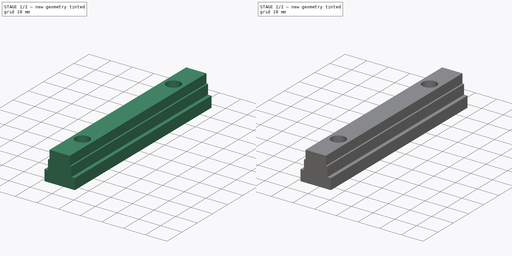
[diagram: build sequence overview — one tinted view per stage of 2, left to right]
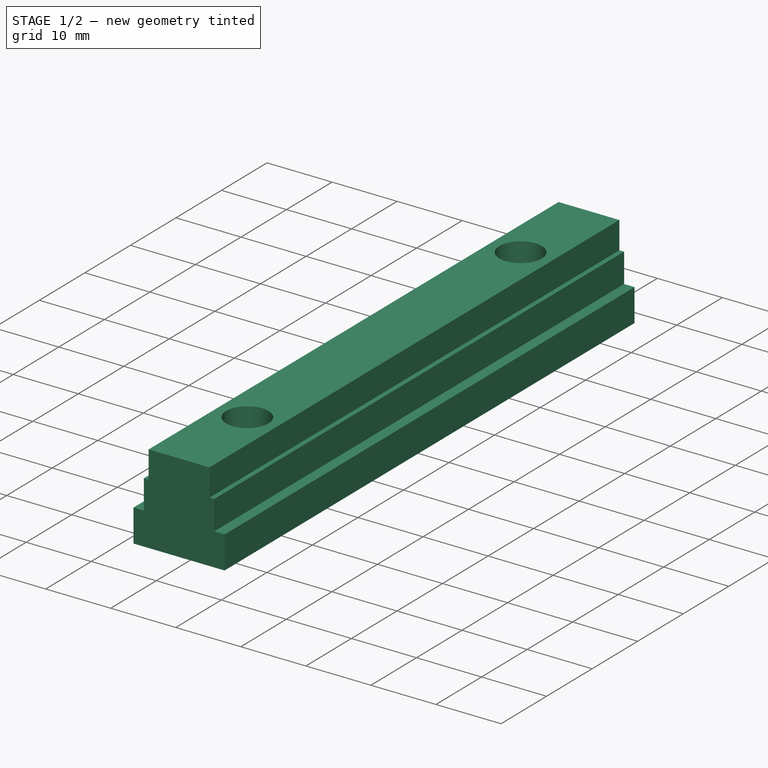
[diagram: stage 1 of 2 — iso view after this stage's code; geometry added in this stage tinted green]
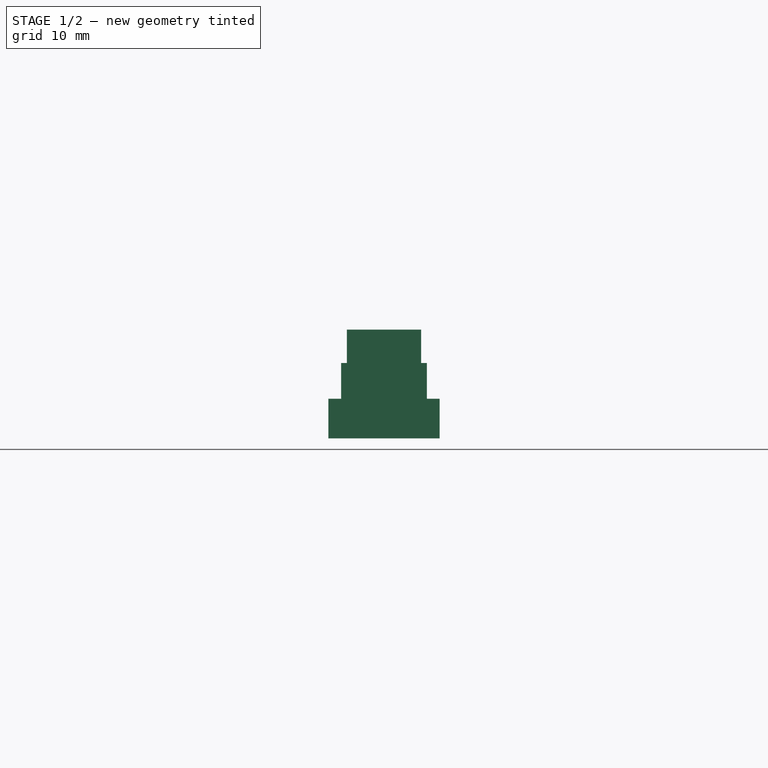
[diagram: stage 1 of 2 — front view after this stage's code; geometry added in this stage tinted green]
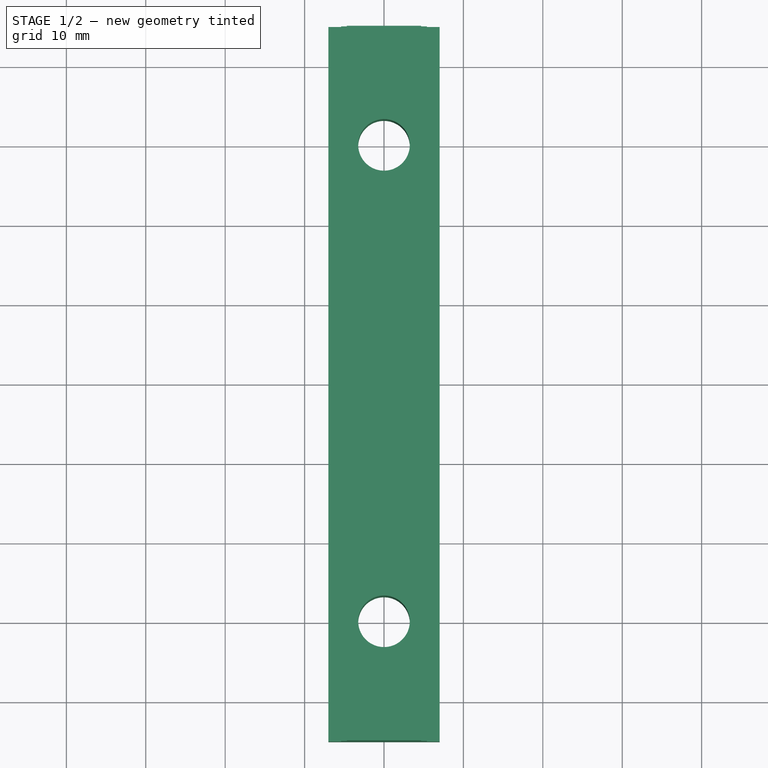
[diagram: stage 1 of 2 — top view after this stage's code; geometry added in this stage tinted green]
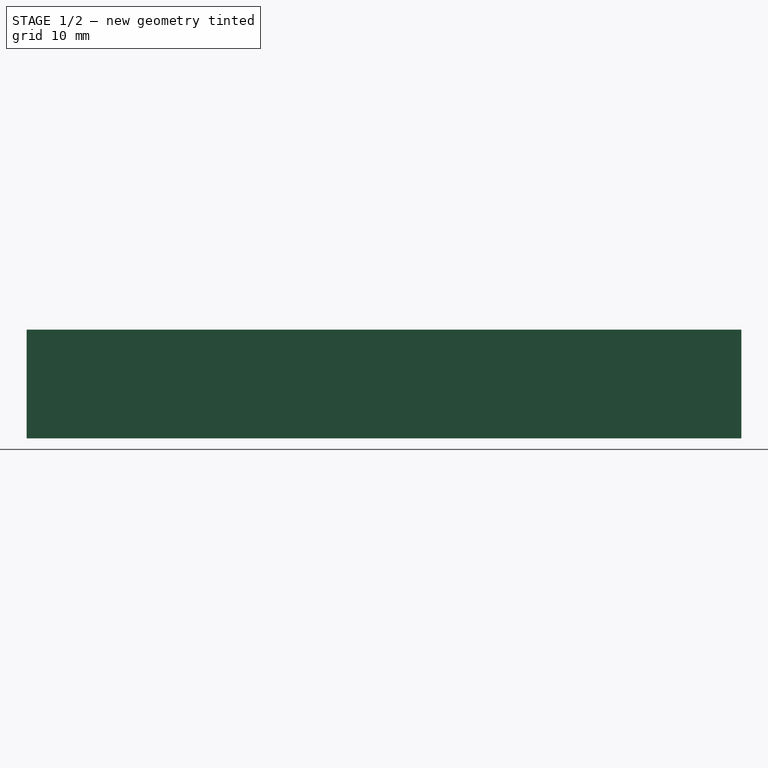
[diagram: stage 1 of 2 — right view after this stage's code; geometry added in this stage tinted green]
FCSTD DOCUMENT  (FreeCAD 0.20R29603 (Git))
Label: Router-T-Track
License: All rights reserved
LicenseURL: http://en.wikipedia.org/wiki/All_rights_reserved
objects: Sketcher::SketchObject×3, PartDesign::Pocket×2, Spreadsheet::Sheet×1, PartDesign::Pad×1, PartDesign::Body×1
note: 10 computed .brp shape members not serialized (recipe doc carries the construction recipe); baked Part::Feature solids carry a one-line shape summary decoded from their .brp

FEATURE [Sketcher::SketchObject] Sketch
  FullyConstrained = true
  MapMode = 5
  Placement = pos=(0,0,0) rot=(1,0,0;1.5708rad)
  Support = -> [XZ_Plane]
  expr: Constraints[23] = Spreadsheet.Width1
  expr: Constraints[24] = Spreadsheet.Width2
  expr: Constraints[25] = Spreadsheet.Width3
  expr: Constraints[26] = Spreadsheet.Height1
  expr: Constraints[27] = Spreadsheet.Height2
  expr: Constraints[28] = Spreadsheet.Height3
  sketch-geometry (12):
    g0: LineSegment StartX=-4.675 StartY=13.7 StartZ=0 EndX=4.675 EndY=13.7 EndZ=0
    g1: LineSegment StartX=4.675 StartY=13.7 StartZ=0 EndX=4.675 EndY=9.5 EndZ=0
    g2: LineSegment StartX=4.675 StartY=9.5 StartZ=0 EndX=5.4 EndY=9.5 EndZ=0
    g3: LineSegment StartX=5.4 StartY=9.5 StartZ=0 EndX=5.4 EndY=5 EndZ=0
    g4: LineSegment StartX=5.4 StartY=5 StartZ=0 EndX=7 EndY=5 EndZ=0
    g5: LineSegment StartX=7 StartY=5 StartZ=0 EndX=7 EndY=0 EndZ=0
    g6: LineSegment StartX=7 StartY=0 StartZ=0 EndX=-7 EndY=0 EndZ=0
    g7: LineSegment StartX=-7 StartY=0 StartZ=0 EndX=-7 EndY=5 EndZ=0
    g8: LineSegment StartX=-7 StartY=5 StartZ=0 EndX=-5.4 EndY=5 EndZ=0
    g9: LineSegment StartX=-5.4 StartY=5 StartZ=0 EndX=-5.4 EndY=9.5 EndZ=0
    g10: LineSegment StartX=-5.4 StartY=9.5 StartZ=0 EndX=-4.675 EndY=9.5 EndZ=0
    g11: LineSegment StartX=-4.675 StartY=9.5 StartZ=0 EndX=-4.675 EndY=13.7 EndZ=0
  constraints (31):
    c: Coincident(g0,g1)
    c: Vertical(g1)
    c: Coincident(g1,g2)
    c: Horizontal(g2)
    c: Coincident(g2,g3)
    c: Vertical(g3)
    c: Coincident(g3,g4)
    c: Horizontal(g4)
    c: Coincident(g4,g5)
    c: Vertical(g5)
    c: Coincident(g5,g6)
    c: Coincident(g6,g7)
    c: Coincident(g7,g8)
    c: Coincident(g8,g9)
    c: Coincident(g9,g10)
    c: Coincident(g10,g11)
    c: Coincident(g11,g0)
    c: Symmetric(g10,g1,g-2)
    c: Symmetric(g0,g0,g-2)
    c: Symmetric(g2,g9,g-2)
    c: Symmetric(g3,g8,g-2)
    c: Symmetric(g5,g6,g-2)
    c: Symmetric(g7,g4,g-2)
    c: DistanceX(g0,g0) = 9.35
    c: DistanceX(g9,g2) = 10.8
    c: DistanceX(g6,g6) = 14
    c: DistanceY(g11,g11) = 4.2
    c: DistanceY(g7,g0) = 8.7
    c: DistanceY(g6,g0) = 13.7
    c: PointOnObject(g-1,g6)
    c: DistanceY(g6,g8) = 5
FEATURE [Spreadsheet::Sheet] Spreadsheet
  cells = A1=Width1; B1(Width1)=9.35; A2=Width2; B2(Width2)=10.8; A3=Width3; B3(Width3)=14; A4=Height1; B4(Height1)=4.2; A5=Height2; B5(Height2)=8.699999999999999; A6=Height3; B6(Height3)=13.7
FEATURE [PartDesign::Pad] Pad
  Direction = (0,-1,2e-16)
  Length = 90
  Length2 = 10
  Midplane = true
  Placement = pos=(0,0,0) rot=(1,0,0;1.5708rad)
  Profile = -> Sketch
  ReferenceAxis = -> Sketch [N_Axis]
  Type = 0
FEATURE [Sketcher::SketchObject] Sketch001
  FullyConstrained = true
  MapMode = 5
  Support = -> [XY_Plane]
  sketch-geometry (2):
    g0: Circle CenterX=0 CenterY=-30 CenterZ=0 NormalX=0 NormalY=0 NormalZ=1 AngleXU=0 Radius=3.25
    g1: Circle CenterX=0 CenterY=30 CenterZ=0 NormalX=0 NormalY=0 NormalZ=1 AngleXU=0 Radius=3.25
  constraints (5):
    c: Diameter(g0) = 6.5
    c: Equal(g0,g1)
    c: PointOnObject(g0,g-2)
    c: Symmetric(g1,g0,g-1)
    c: DistanceY(g0,g1) = 60
FEATURE [PartDesign::Pocket] Pocket
  BaseFeature = -> Pad
  Direction = (0,0,-1)
  Length = 5
  Length2 = 5
  Placement = pos=(0,0,0) rot=(1,0,0;1.5708rad)
  Profile = -> Sketch001
  ReferenceAxis = -> Sketch001 [N_Axis]
  Reversed = true
  Type = 1
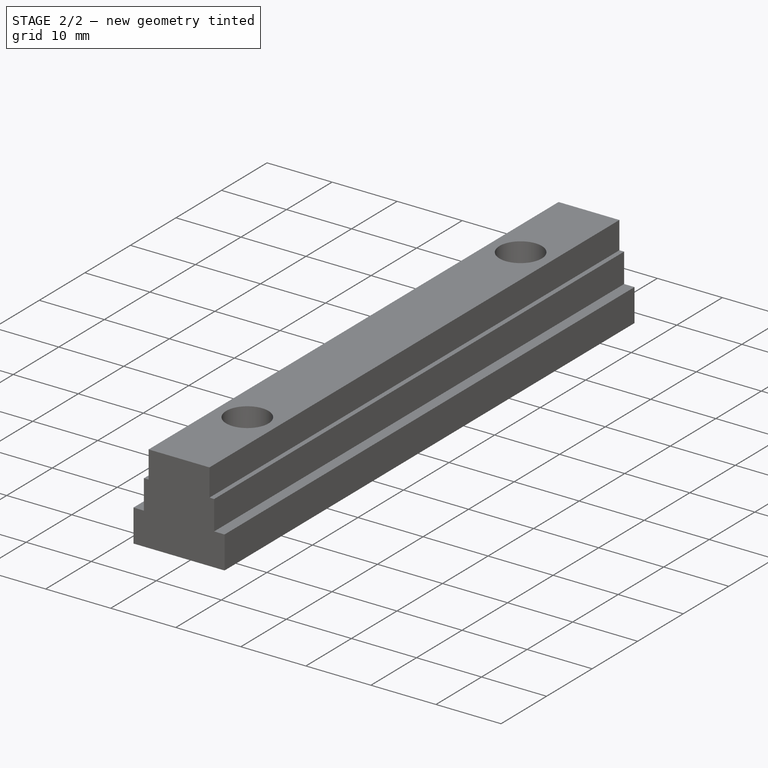
[diagram: stage 2 of 2 — iso view after this stage's code; geometry added in this stage tinted green]
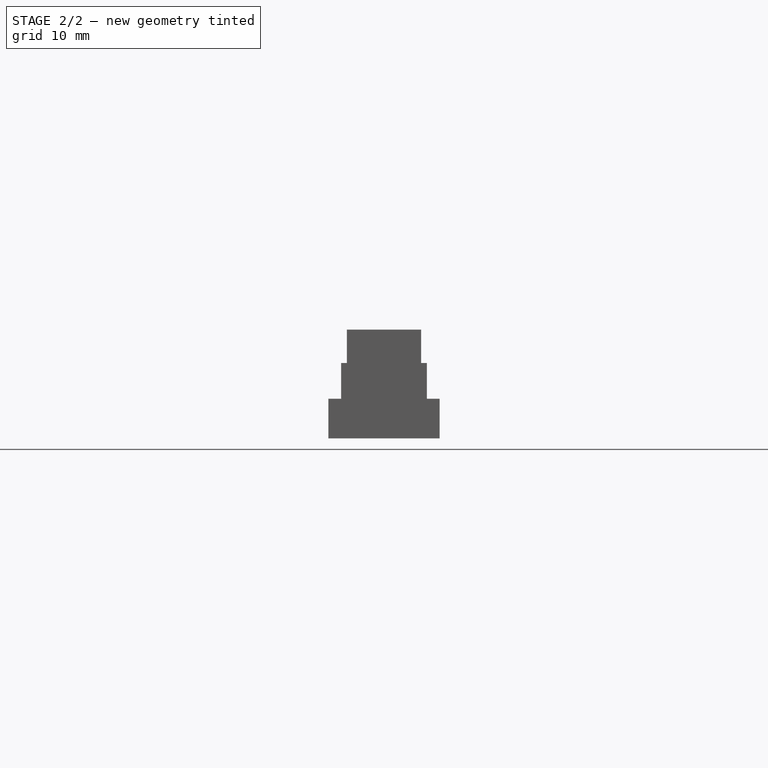
[diagram: stage 2 of 2 — front view after this stage's code; geometry added in this stage tinted green]
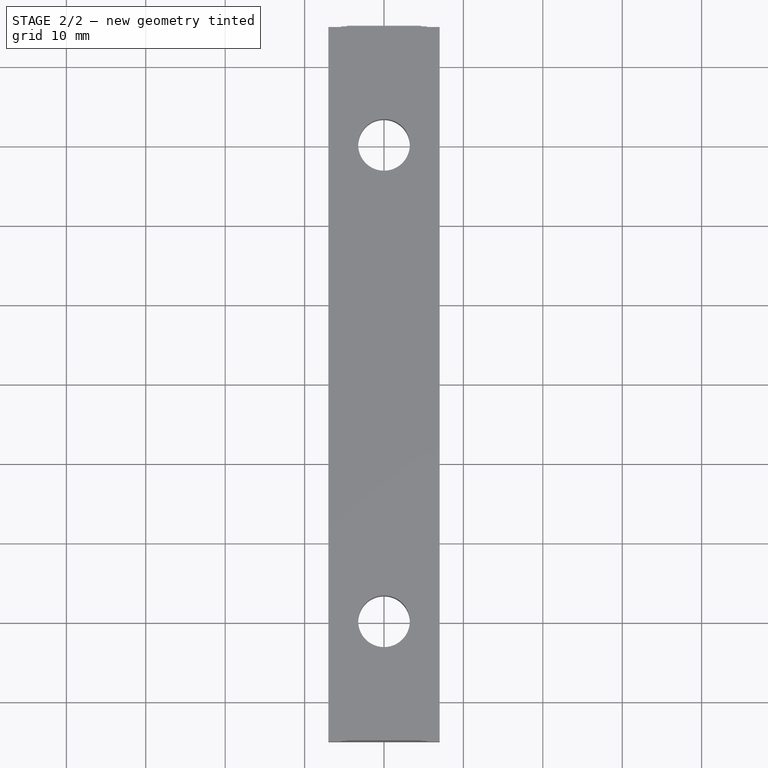
[diagram: stage 2 of 2 — top view after this stage's code; geometry added in this stage tinted green]
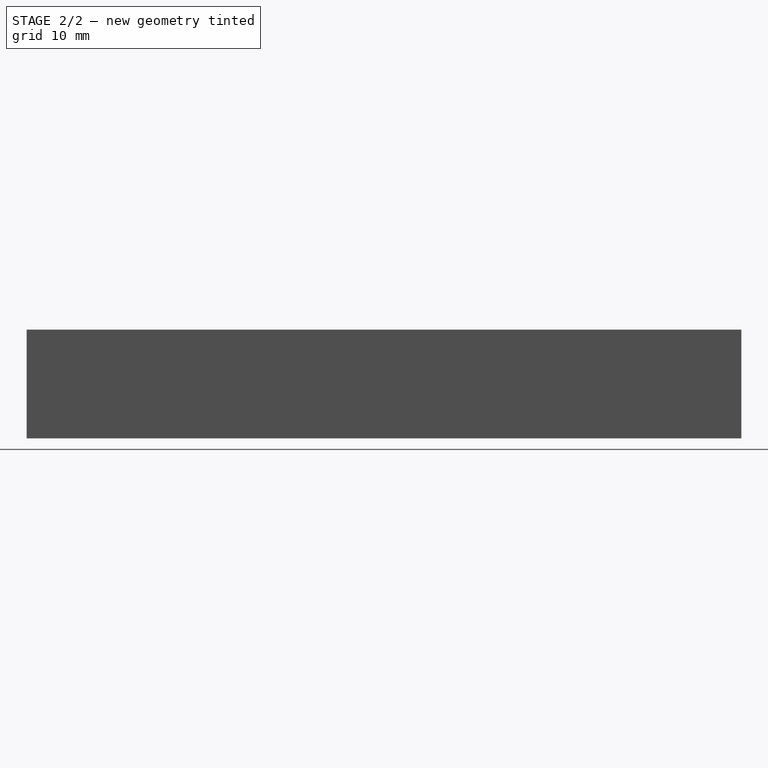
[diagram: stage 2 of 2 — right view after this stage's code; geometry added in this stage tinted green]
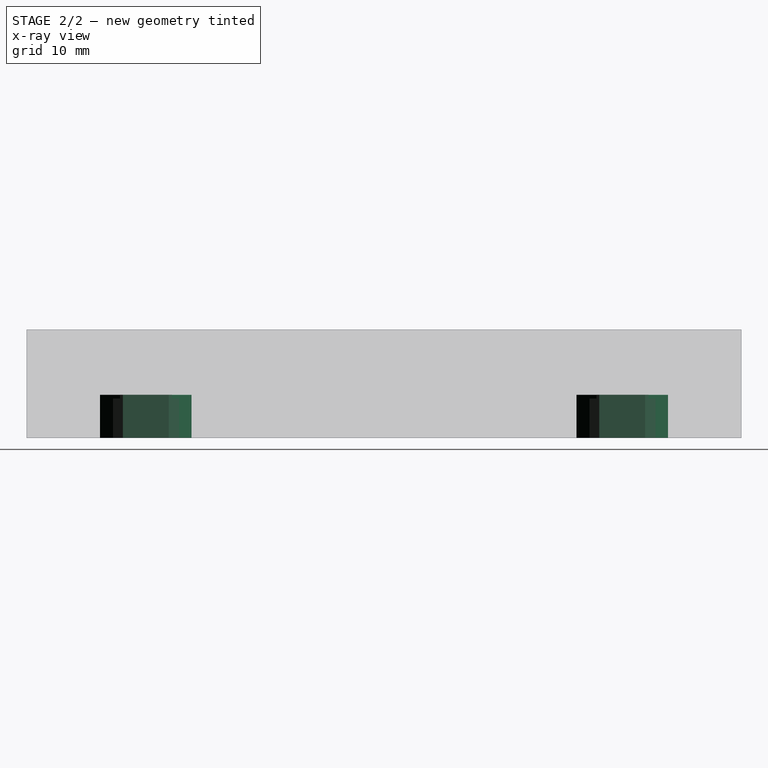
[diagram: stage 2 of 2 — x-ray composite at the right view; earlier geometry ghosted, this stage's added geometry solid]
FEATURE [Sketcher::SketchObject] Sketch002
  FullyConstrained = true
  MapMode = 5
  Support = -> [XY_Plane]
  sketch-geometry (14):
    g0: LineSegment StartX=5 StartY=27.1132 StartZ=0 EndX=5 EndY=32.8868 EndZ=0
    g1: LineSegment StartX=5 StartY=32.8868 StartZ=0 EndX=0 EndY=35.7735 EndZ=0
    g2: LineSegment StartX=1e-16 StartY=35.7735 StartZ=0 EndX=-5 EndY=32.8868 EndZ=0
    g3: LineSegment StartX=-5 StartY=32.8868 StartZ=0 EndX=-5 EndY=27.1132 EndZ=0
    g4: LineSegment StartX=-5 StartY=27.1132 StartZ=0 EndX=0 EndY=24.2265 EndZ=0
    g5: LineSegment StartX=1e-16 StartY=24.2265 StartZ=0 EndX=5 EndY=27.1132 EndZ=0
    g6: Circle CenterX=0 CenterY=30 CenterZ=0 NormalX=0 NormalY=0 NormalZ=1 AngleXU=0 Radius=5.7735
    g7: LineSegment StartX=0 StartY=-35.7735 StartZ=0 EndX=5 EndY=-32.8868 EndZ=0
    g8: LineSegment StartX=5 StartY=-32.8868 StartZ=0 EndX=5 EndY=-27.1132 EndZ=0
    g9: LineSegment StartX=5 StartY=-27.1132 StartZ=0 EndX=0 EndY=-24.2265 EndZ=0
    g10: LineSegment StartX=0 StartY=-24.2265 StartZ=0 EndX=-5 EndY=-27.1132 EndZ=0
    g11: LineSegment StartX=-5 StartY=-27.1132 StartZ=0 EndX=-5 EndY=-32.8868 EndZ=0
    g12: LineSegment StartX=-5 StartY=-32.8868 StartZ=0 EndX=0 EndY=-35.7735 EndZ=0
    g13: Circle CenterX=0 CenterY=-30 CenterZ=0 NormalX=0 NormalY=0 NormalZ=1 AngleXU=0 Radius=5.7735
  constraints (33):
    c: Coincident(g0,g1)
    c: Coincident(g1,g2)
    c: Coincident(g2,g3)
    c: Coincident(g3,g4)
    c: Coincident(g4,g5)
    c: Coincident(g5,g0)
    c: Equal(g0, g1-g5) x5
    c: PointOnObject(g0,g6)
    c: PointOnObject(g1,g6)
    c: PointOnObject(g2,g6)
    c: PointOnObject(g3,g6)
    c: PointOnObject(g4,g6)
    c: PointOnObject(g5,g6)
    c: Vertical(g1,g4)
    c: DistanceX(g2,g0) = 10
    c: PointOnObject(g6,g-2)
    c: Coincident(g7,g8)
    c: Coincident(g8,g9)
    c: Coincident(g9,g10)
    c: Coincident(g10,g11)
    c: Coincident(g11,g12)
    c: Coincident(g12,g7)
    c: Equal(g7, g8-g12) x5
    c: PointOnObject(g7,g13)
    c: PointOnObject(g8,g13)
    c: PointOnObject(g9,g13)
    c: PointOnObject(g10,g13)
    c: PointOnObject(g11,g13)
    c: PointOnObject(g12,g13)
    c: PointOnObject(g12,g-2)
    c: Symmetric(g6,g13,g-1)
    c: Equal(g13,g6)
    c: DistanceY(g13,g6) = 60
FEATURE [PartDesign::Pocket] Pocket001
  BaseFeature = -> Pocket
  Direction = (0,0,-1)
  Length = 5.5
  Length2 = 5
  Placement = pos=(0,0,0) rot=(1,0,0;1.5708rad)
  Profile = -> Sketch002
  ReferenceAxis = -> Sketch002 [N_Axis]
  Reversed = true
  Type = 0
FEATURE [PartDesign::Body] Body
  Group = -> [Sketch,Pad,Sketch001,Pocket,Sketch002,Pocket001]
  Origin = -> Origin
  Tip = -> Pocket001
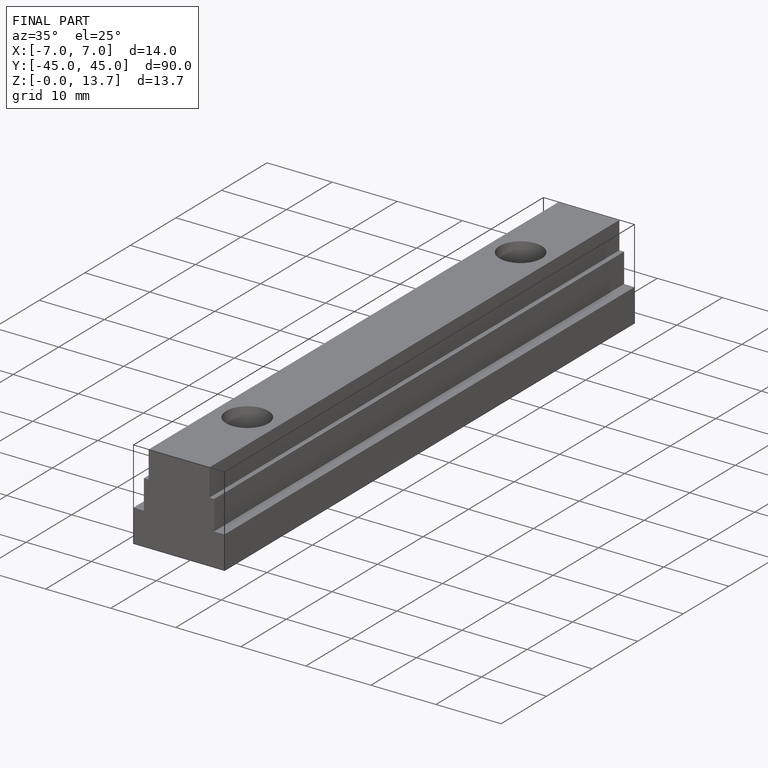
[diagram: finished part — iso view with bounding-box wireframe]
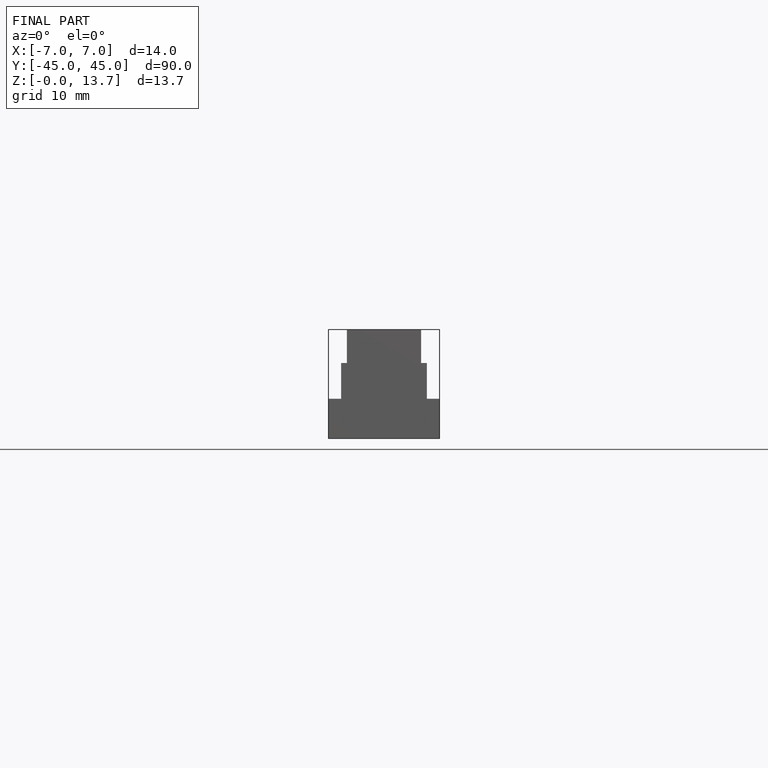
[diagram: finished part — front view with bounding-box wireframe]
